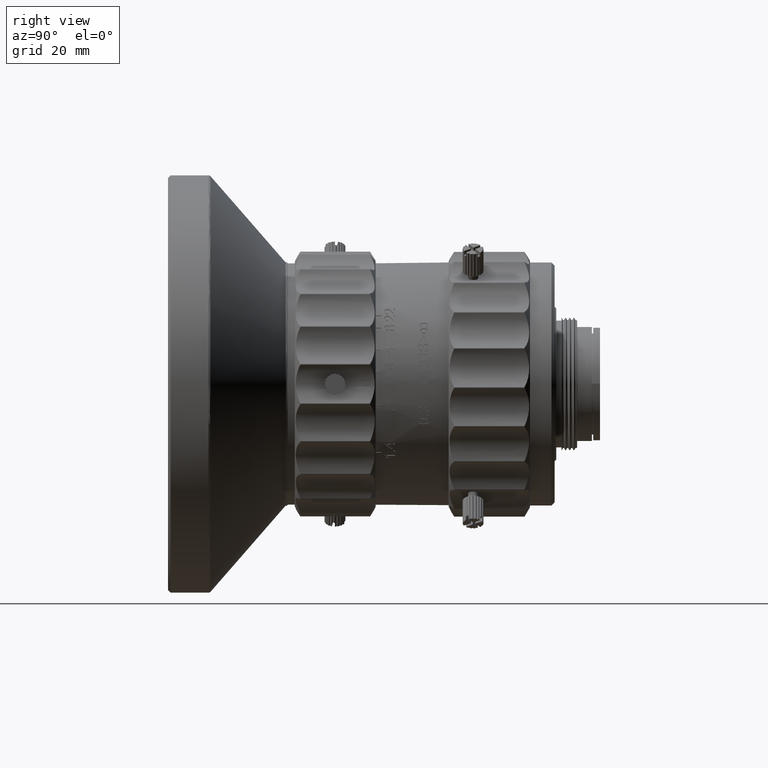
[diagram: clean part render]
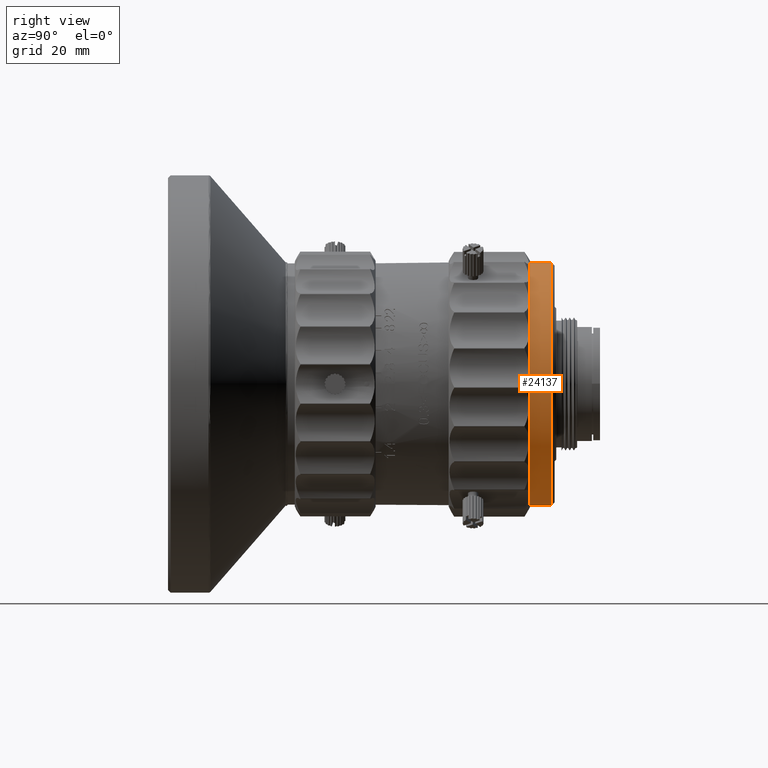
[diagram: same view with one face highlighted and labeled with its STEP entity id]
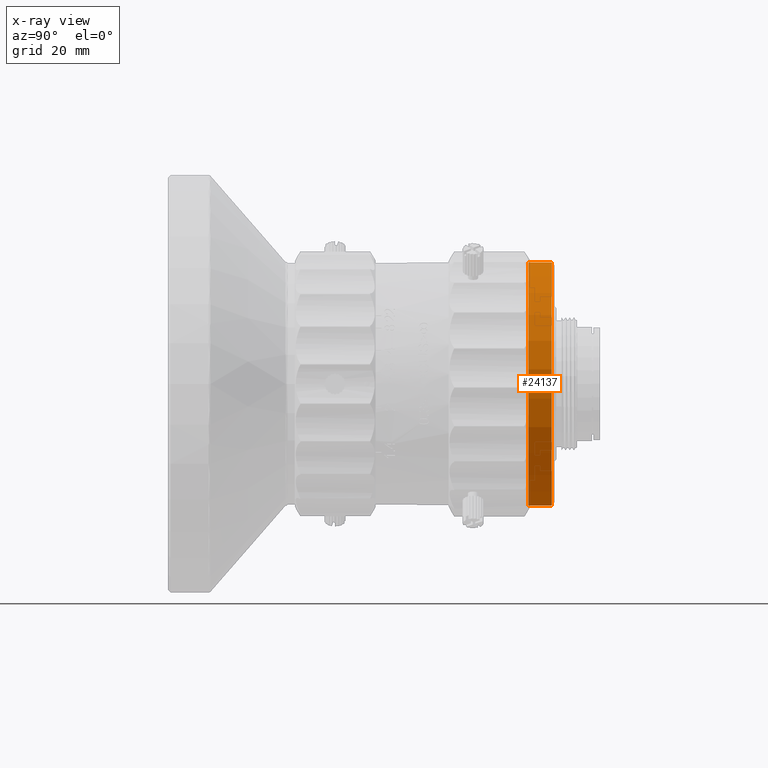
[diagram: x-ray of the same camera — body ghosted, the highlighted face saturated]
A machine part, right view. The second image highlights one B-rep face of the part: STEP entity #24137.
The next image is the same camera in x-ray: the body ghosted, the highlighted face saturated — about 0% of this face is hidden behind the body in this view.
In plain terms, the highlighted cylindrical surface (bore or boss wall) has radius 23.3 mm, axis along (0, -1, 0).
Its self-contained STEP definition (entity closure, byte-faithful):
#2425 = DIRECTION ( 'NONE',  ( -8.276111117004355824E-19, 1.000000000000000000, -4.121950411566822445E-17 ) ) ;
#7307 = CYLINDRICAL_SURFACE ( 'NONE', #34001, 23.30000141057636753 ) ;
#8805 = CIRCLE ( 'NONE', #23322, 23.30000183082180953 ) ;
#10424 = EDGE_LOOP ( 'NONE', ( #93181 ) ) ;
#14690 = DIRECTION ( 'NONE',  ( 4.757805020752759874E-08, 0.000000000000000000, 0.9999999999999987788 ) ) ;
#15818 = DIRECTION ( 'NONE',  ( 8.276111117004355824E-19, -1.000000000000000000, 4.121950411566822445E-17 ) ) ;
#16934 = FACE_OUTER_BOUND ( 'NONE', #10424, .T. ) ;
#23322 = AXIS2_PLACEMENT_3D ( 'NONE', #41943, #43067, #44753 ) ;
#24137 = ADVANCED_FACE ( 'NONE', ( #77199, #16934 ), #7307, .T. ) ;
#27404 = EDGE_CURVE ( 'NONE', #72910, #72910, #37992, .T. ) ;
#29374 = CARTESIAN_POINT ( 'NONE',  ( 1.809033205897187488E-06, 73.51993811429849757, 23.30000223523517278 ) ) ;
#31122 = EDGE_LOOP ( 'NONE', ( #32222 ) ) ;
#32222 = ORIENTED_EDGE ( 'NONE', *, *, #27404, .T. ) ;
#34001 = AXIS2_PLACEMENT_3D ( 'NONE', #34578, #15818, #101128 ) ;
#34578 = CARTESIAN_POINT ( 'NONE',  ( 7.004645489604115307E-07, 66.81441874058607766, 4.044133879694600295E-07 ) ) ;
#37992 = CIRCLE ( 'NONE', #66947, 23.30000141057636753 ) ;
#41041 = EDGE_CURVE ( 'NONE', #74242, #74242, #8805, .T. ) ;
#41943 = CARTESIAN_POINT ( 'NONE',  ( 7.004645489548619826E-07, 73.51993811429849757, 4.044133876930619027E-07 ) ) ;
#43067 = DIRECTION ( 'NONE',  ( -8.276111117004355824E-19, 1.000000000000000000, -4.121950411566822445E-17 ) ) ;
#44753 = DIRECTION ( 'NONE',  ( 4.757805020752761859E-08, 0.000000000000000000, 0.9999999999999988898 ) ) ;
#47346 = CARTESIAN_POINT ( 'NONE',  ( 1.809033185906389370E-06, 69.09632268642253905, 23.30000181498972722 ) ) ;
#66947 = AXIS2_PLACEMENT_3D ( 'NONE', #92587, #2425, #14690 ) ;
#72910 = VERTEX_POINT ( 'NONE', #47346 ) ;
#74242 = VERTEX_POINT ( 'NONE', #29374 ) ;
#77199 = FACE_OUTER_BOUND ( 'NONE', #31122, .T. ) ;
#92587 = CARTESIAN_POINT ( 'NONE',  ( 7.004645489585229649E-07, 69.09632268642253905, 4.044133878754010970E-07 ) ) ;
#93181 = ORIENTED_EDGE ( 'NONE', *, *, #41041, .F. ) ;
#101128 = DIRECTION ( 'NONE',  ( 4.757805020752760535E-08, 0.000000000000000000, 0.9999999999999987788 ) ) ;